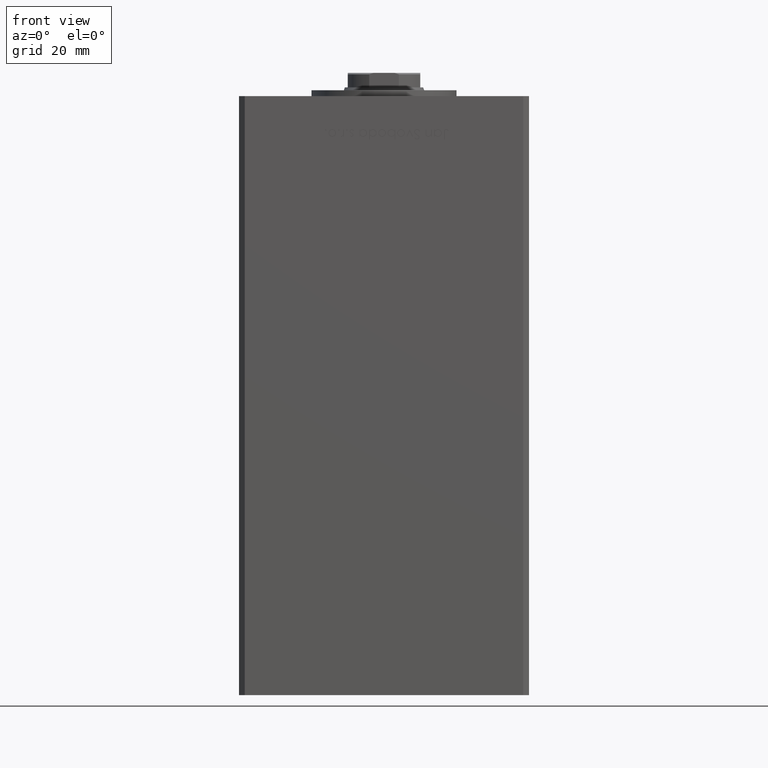
[diagram: clean part render]
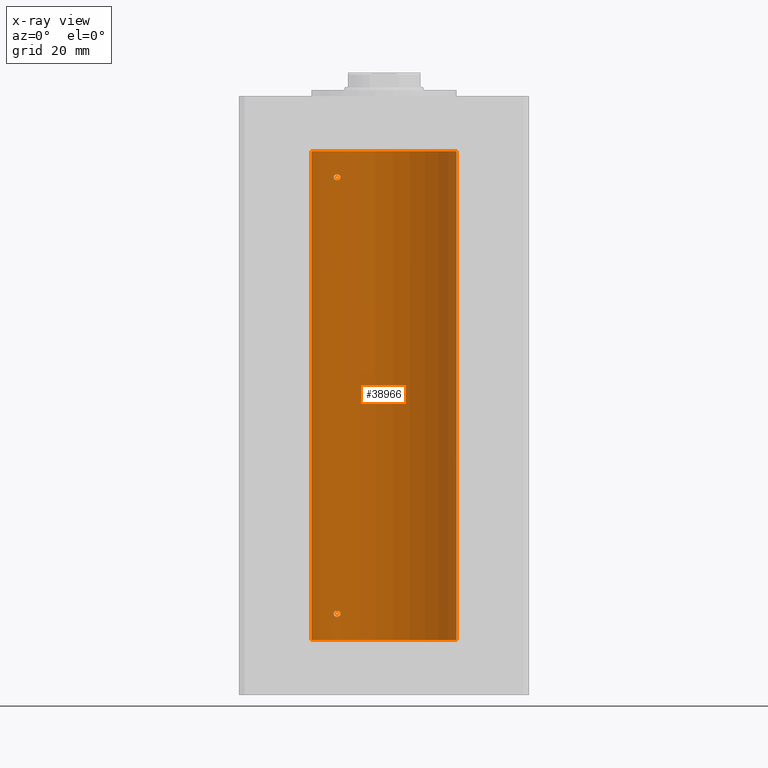
[diagram: x-ray — body ghosted, one internal face saturated and labeled with its STEP entity id]
A machine part, front view, then the same camera in x-ray: the body is ghosted and one INTERNAL B-rep face — a face not visible from any outside direction — is saturated and labeled: STEP entity #38966.
In plain terms, the highlighted cylindrical surface (partial cylindrical patch) has radius 25 mm, axis along (-0, -0, -1).
Its self-contained STEP definition (entity closure, byte-faithful):
#143 = CARTESIAN_POINT ( 'NONE',  ( -17.34935157289806185, 17.99999999999981526, 159.5000000000001137 ) ) ;
#196 = CARTESIAN_POINT ( 'NONE',  ( -17.15234217094406333, 18.18812579706696653, 158.8965730437749926 ) ) ;
#260 = CARTESIAN_POINT ( 'NONE',  ( -16.08745393861402917, 19.13692152169249994, 9.996501509986932987 ) ) ;
#323 = CARTESIAN_POINT ( 'NONE',  ( -15.00000000000019007, 20.00000000000002842, 8.915947458602436981 ) ) ;
#454 = CARTESIAN_POINT ( 'NONE',  ( -17.34935157289747210, 18.00000000000002132, 159.3289983604258850 ) ) ;
#517 = CARTESIAN_POINT ( 'NONE',  ( -16.46913072925703148, 18.81168496547890712, 10.00577755881140618 ) ) ;
#707 = CARTESIAN_POINT ( 'NONE',  ( -17.05249165747618534, 18.28208333366438509, 158.7922192200364577 ) ) ;
#3038 = CARTESIAN_POINT ( 'NONE',  ( -17.30163983552688833, 18.04615713653367948, 159.8360074727278288 ) ) ;
#3465 = DIRECTION ( 'NONE',  ( 1.000000000000000000, 0.000000000000000000, 0.000000000000000000 ) ) ;
#3806 = CARTESIAN_POINT ( 'NONE',  ( -17.14593038898727428, 18.19399314418736324, 160.0959448831964664 ) ) ;
#3984 = CARTESIAN_POINT ( 'NONE',  ( -15.58164749401199956, 19.55082150006405683, 8.156678072685190628 ) ) ;
#4118 = CARTESIAN_POINT ( 'NONE',  ( -15.01482636753733146, 19.98889854010115741, 159.3312026610077226 ) ) ;
#4244 = CARTESIAN_POINT ( 'NONE',  ( -15.06722189748647622, 19.94943357555938945, 8.675980324878882044 ) ) ;
#4390 = CARTESIAN_POINT ( 'NONE',  ( -16.08757264251632080, 19.13682698743034649, 158.5034427658482343 ) ) ;
#4509 = DIRECTION ( 'NONE',  ( -0.000000000000000000, -0.000000000000000000, -1.000000000000000000 ) ) ;
#6009 = VERTEX_POINT ( 'NONE', #23043 ) ;
#7220 = CARTESIAN_POINT ( 'NONE',  ( 25.00000000000000000, 3.061616997868383043E-15, 168.5000000000000000 ) ) ;
#7409 = CARTESIAN_POINT ( 'NONE',  ( -16.71492528194902860, 18.59135325782701287, 8.080141558342052832 ) ) ;
#7475 = B_SPLINE_CURVE_WITH_KNOTS ( 'NONE', 3,
 ( #25887, #50300, #14327, #41881, #21952, #37960, #46344, #7486, #24017, #43701, #51343, #47646, #27970, #19841, #43961, #3806, #40013, #3038, #39249, #143 ),
 .UNSPECIFIED., .F., .F.,
 ( 4, 2, 2, 2, 2, 2, 2, 2, 2, 4 ),
 ( 0.004032696862986557759, 0.004284699222246954667, 0.004536701581507351574, 0.005040706300028082940, 0.005544711018548810835, 0.006048715737069539598, 0.007056725174110996257, 0.007308727533371349797, 0.007560729892631701601, 0.008064734611152412150 ),
 .UNSPECIFIED. ) ;
#7486 = CARTESIAN_POINT ( 'NONE',  ( -15.58230678163759642, 19.55030131031898577, 160.3437394867029298 ) ) ;
#7717 = CIRCLE ( 'NONE', #30357, 25.00000000000000000 ) ;
#7928 = CARTESIAN_POINT ( 'NONE',  ( -17.34935157289806895, 17.99999999999981526, 9.000000000000094147 ) ) ;
#8110 = CARTESIAN_POINT ( 'NONE',  ( -15.58230678163760530, 19.55030131031898577, 9.843739486702938635 ) ) ;
#8376 = CARTESIAN_POINT ( 'NONE',  ( -14.99999999999999112, 20.00000000000001066, 9.000000000000000000 ) ) ;
#8640 = CARTESIAN_POINT ( 'NONE',  ( -16.72476285461318568, 18.58415905903082788, 9.944944760795701555 ) ) ;
#9221 = CARTESIAN_POINT ( 'NONE',  ( -14.99999999999999112, 20.00000000000000711, 159.5000000000000000 ) ) ;
#9291 = AXIS2_PLACEMENT_3D ( 'NONE', #35223, #39411, #3465 ) ;
#9312 = B_SPLINE_CURVE_WITH_KNOTS ( 'NONE', 3,
 ( #40330, #454, #24069, #196, #707, #32474, #48475, #16717, #12510, #4390, #23808, #20409, #28537, #44538, #27765, #43755, #16200, #4118, #24600, #40590 ),
 .UNSPECIFIED., .F., .F.,
 ( 4, 2, 2, 2, 2, 2, 2, 2, 2, 4 ),
 ( 2.254873622441466949E-16, 0.0005040871078735091300, 0.001008174215746792746, 0.001512261323620076470, 0.002016348431493359978, 0.002520435539366643485, 0.003024522647239927427, 0.003528609755113210501, 0.003780653309049884347, 0.004032696862986557759 ),
 .UNSPECIFIED. ) ;
#9526 = VERTEX_POINT ( 'NONE', #22582 ) ;
#10521 = CARTESIAN_POINT ( 'NONE',  ( -25.00000000000000000, 0.000000000000000000, 0.000000000000000000 ) ) ;
#10949 = CIRCLE ( 'NONE', #9291, 25.00000000000000000 ) ;
#11428 = DIRECTION ( 'NONE',  ( 1.000000000000000000, 0.000000000000000000, 0.000000000000000000 ) ) ;
#11703 = ORIENTED_EDGE ( 'NONE', *, *, #12493, .F. ) ;
#11794 = CARTESIAN_POINT ( 'NONE',  ( -17.34935157289747210, 18.00000000000001421, 9.170973690606336604 ) ) ;
#12115 = DIRECTION ( 'NONE',  ( -1.000000000000000000, 0.000000000000000000, 0.000000000000000000 ) ) ;
#12119 = CARTESIAN_POINT ( 'NONE',  ( -14.99999999999999112, 20.00000000000001066, 9.000000000000000000 ) ) ;
#12380 = CARTESIAN_POINT ( 'NONE',  ( -17.30269557861142360, 18.04515136187502122, 8.666042081755742643 ) ) ;
#12493 = EDGE_CURVE ( 'NONE', #40647, #22746, #10949, .T. ) ;
#12510 = CARTESIAN_POINT ( 'NONE',  ( -16.34293146994552259, 18.91921593628409681, 158.4973425906725879 ) ) ;
#12572 = CARTESIAN_POINT ( 'NONE',  ( -15.95796937689561013, 19.24499537862566712, 9.975773099652194276 ) ) ;
#12634 = FACE_BOUND ( 'NONE', #43392, .T. ) ;
#13365 = B_SPLINE_CURVE_WITH_KNOTS ( 'NONE', 3,
 ( #7928, #27374, #12380, #36269, #23944, #43369, #7409, #39936, #19763, #35756, #15554, #43623, #3984, #23428, #31567, #39690, #4244, #32346, #323, #12119 ),
 .UNSPECIFIED., .F., .F.,
 ( 4, 2, 2, 2, 2, 2, 2, 2, 2, 4 ),
 ( 1.994630283518400476E-16, 0.0005040871078734959028, 0.001008174215746792312, 0.001512261323620088830, 0.002016348431493385131, 0.002520435539366681216, 0.003024522647239978167, 0.003528609755113274252, 0.003780653309049923812, 0.004032696862986573372 ),
 .UNSPECIFIED. ) ;
#14327 = CARTESIAN_POINT ( 'NONE',  ( -15.01476641895662567, 19.98894406010707314, 159.6687945634013204 ) ) ;
#15554 = CARTESIAN_POINT ( 'NONE',  ( -15.95808436639360295, 19.24489366819300429, 8.024260878849535317 ) ) ;
#15817 = EDGE_CURVE ( 'NONE', #46684, #9526, #7717, .T. ) ;
#16136 = EDGE_LOOP ( 'NONE', ( #28426, #16438, #40817, #11703 ) ) ;
#16200 = CARTESIAN_POINT ( 'NONE',  ( -15.06722189748648866, 19.94943357555938590, 159.1759803248789069 ) ) ;
#16438 = ORIENTED_EDGE ( 'NONE', *, *, #15817, .T. ) ;
#16717 = CARTESIAN_POINT ( 'NONE',  ( -16.46844752485324648, 18.81003400474354947, 158.5115443190388760 ) ) ;
#16776 = CARTESIAN_POINT ( 'NONE',  ( -17.34935157289806895, 17.99999999999981526, 9.000000000000094147 ) ) ;
#19407 = VERTEX_POINT ( 'NONE', #41422 ) ;
#19609 = ORIENTED_EDGE ( 'NONE', *, *, #21990, .F. ) ;
#19763 = CARTESIAN_POINT ( 'NONE',  ( -16.34293146994553680, 18.91921593628409681, 7.997342590672627871 ) ) ;
#19841 = CARTESIAN_POINT ( 'NONE',  ( -16.99843849356149050, 18.33190197607055794, 160.2468335145757123 ) ) ;
#20409 = CARTESIAN_POINT ( 'NONE',  ( -15.70664578139651546, 19.45064696206092947, 158.6005795994921357 ) ) ;
#20474 = CARTESIAN_POINT ( 'NONE',  ( -15.06763582406798463, 19.94912143246364522, 9.325069938771754607 ) ) ;
#20861 = ORIENTED_EDGE ( 'NONE', *, *, #31340, .F. ) ;
#21952 = CARTESIAN_POINT ( 'NONE',  ( -15.10490800566735103, 19.92096305044241689, 159.8962931740442457 ) ) ;
#21990 = EDGE_CURVE ( 'NONE', #6009, #25423, #9312, .T. ) ;
#22582 = CARTESIAN_POINT ( 'NONE',  ( -25.00000000000000000, 0.000000000000000000, 168.5000000000000000 ) ) ;
#22746 = VERTEX_POINT ( 'NONE', #10521 ) ;
#23043 = CARTESIAN_POINT ( 'NONE',  ( -17.34935157289806185, 17.99999999999981526, 159.5000000000001137 ) ) ;
#23109 = EDGE_CURVE ( 'NONE', #46684, #40647, #34535, .T. ) ;
#23404 = CARTESIAN_POINT ( 'NONE',  ( 25.00000000000000000, 3.061616997868383043E-15, 168.5000000000000000 ) ) ;
#23428 = CARTESIAN_POINT ( 'NONE',  ( -15.34666241858317903, 19.73581294411416209, 8.312122460537615609 ) ) ;
#23808 = CARTESIAN_POINT ( 'NONE',  ( -15.95808436639360117, 19.24489366819300784, 158.5242608788495886 ) ) ;
#23944 = CARTESIAN_POINT ( 'NONE',  ( -17.05249165747619955, 18.28208333366437088, 8.292219220036422200 ) ) ;
#24017 = CARTESIAN_POINT ( 'NONE',  ( -15.70535969280552280, 19.45169171760802485, 160.3989607721124742 ) ) ;
#24069 = CARTESIAN_POINT ( 'NONE',  ( -17.30269557861141294, 18.04515136187502478, 159.1660420817557338 ) ) ;
#24129 = CARTESIAN_POINT ( 'NONE',  ( -17.19010376497221060, 18.15221652163110377, 9.535670123568005252 ) ) ;
#24196 = FACE_OUTER_BOUND ( 'NONE', #16136, .T. ) ;
#24395 = CARTESIAN_POINT ( 'NONE',  ( -17.14593038898729560, 18.19399314418734548, 9.595944883196500186 ) ) ;
#24399 = EDGE_CURVE ( 'NONE', #39970, #19407, #40442, .T. ) ;
#24600 = CARTESIAN_POINT ( 'NONE',  ( -15.00000000000018119, 20.00000000000001421, 159.4159474586024317 ) ) ;
#24706 = VECTOR ( 'NONE', #51180, 1000.000000000000000 ) ;
#25423 = VERTEX_POINT ( 'NONE', #9221 ) ;
#25887 = CARTESIAN_POINT ( 'NONE',  ( -14.99999999999999112, 20.00000000000000711, 159.5000000000000000 ) ) ;
#26814 = ORIENTED_EDGE ( 'NONE', *, *, #51614, .F. ) ;
#27374 = CARTESIAN_POINT ( 'NONE',  ( -17.34935157289747210, 18.00000000000001066, 8.828998360425808656 ) ) ;
#27765 = CARTESIAN_POINT ( 'NONE',  ( -15.23538646979298505, 19.82157806413532697, 158.9119998952828041 ) ) ;
#27826 = CARTESIAN_POINT ( 'NONE',  ( -15.01476641895661679, 19.98894406010708380, 9.168794563401341691 ) ) ;
#27968 = DIRECTION ( 'NONE',  ( -0.000000000000000000, 0.000000000000000000, 1.000000000000000000 ) ) ;
#27970 = CARTESIAN_POINT ( 'NONE',  ( -16.72476285461317502, 18.58415905903083498, 160.4449447607956643 ) ) ;
#28426 = ORIENTED_EDGE ( 'NONE', *, *, #23109, .F. ) ;
#28537 = CARTESIAN_POINT ( 'NONE',  ( -15.58164749401199956, 19.55082150006405328, 158.6566780726851960 ) ) ;
#29787 = ORIENTED_EDGE ( 'NONE', *, *, #24399, .F. ) ;
#30357 = AXIS2_PLACEMENT_3D ( 'NONE', #31392, #27968, #11428 ) ;
#30510 = CARTESIAN_POINT ( 'NONE',  ( -14.99999999999999112, 20.00000000000001066, 9.000000000000000000 ) ) ;
#31340 = EDGE_CURVE ( 'NONE', #19407, #39970, #13365, .T. ) ;
#31387 = DIRECTION ( 'NONE',  ( -0.000000000000000000, -0.000000000000000000, -1.000000000000000000 ) ) ;
#31392 = CARTESIAN_POINT ( 'NONE',  ( 0.000000000000000000, 0.000000000000000000, 168.5000000000000000 ) ) ;
#31567 = CARTESIAN_POINT ( 'NONE',  ( -15.23538646979297440, 19.82157806413534118, 8.411999895282772144 ) ) ;
#31755 = CARTESIAN_POINT ( 'NONE',  ( -15.23594348686699895, 19.82115246225716376, 9.588721932685826843 ) ) ;
#32346 = CARTESIAN_POINT ( 'NONE',  ( -15.01482636753732791, 19.98889854010116096, 8.831202661007704791 ) ) ;
#32474 = CARTESIAN_POINT ( 'NONE',  ( -16.83415218046510731, 18.48332662461726983, 158.6343172662811867 ) ) ;
#34535 = LINE ( 'NONE', #7220, #42034 ) ;
#35223 = CARTESIAN_POINT ( 'NONE',  ( 0.000000000000000000, 0.000000000000000000, 0.000000000000000000 ) ) ;
#35686 = CARTESIAN_POINT ( 'NONE',  ( -15.70535969280553346, 19.45169171760802840, 9.898960772112497253 ) ) ;
#35752 = CARTESIAN_POINT ( 'NONE',  ( 0.000000000000000000, 0.000000000000000000, 168.5000000000000000 ) ) ;
#35756 = CARTESIAN_POINT ( 'NONE',  ( -16.08757264251632790, 19.13682698743033939, 8.003442765848200580 ) ) ;
#36269 = CARTESIAN_POINT ( 'NONE',  ( -17.15234217094407043, 18.18812579706695232, 8.396573043774958833 ) ) ;
#36468 = CARTESIAN_POINT ( 'NONE',  ( -15.00000000000018829, 20.00000000000001776, 9.084038803624167713 ) ) ;
#37325 = EDGE_CURVE ( 'NONE', #9526, #22746, #43031, .T. ) ;
#37960 = CARTESIAN_POINT ( 'NONE',  ( -15.23594348686699185, 19.82115246225716021, 160.0887219326858713 ) ) ;
#38966 = ADVANCED_FACE ( 'NONE', ( #24196, #40454, #12634 ), #48343, .F. ) ;
#39249 = CARTESIAN_POINT ( 'NONE',  ( -17.34935157289746854, 18.00000000000001421, 159.6709736906063029 ) ) ;
#39411 = DIRECTION ( 'NONE',  ( -0.000000000000000000, 0.000000000000000000, 1.000000000000000000 ) ) ;
#39690 = CARTESIAN_POINT ( 'NONE',  ( -15.10490010356604174, 19.92096840819820258, 8.603766671322523152 ) ) ;
#39936 = CARTESIAN_POINT ( 'NONE',  ( -16.46844752485326069, 18.81003400474354237, 8.011544319038929274 ) ) ;
#39970 = VERTEX_POINT ( 'NONE', #30510 ) ;
#40013 = CARTESIAN_POINT ( 'NONE',  ( -17.19010376497220705, 18.15221652163111088, 160.0356701235680248 ) ) ;
#40330 = CARTESIAN_POINT ( 'NONE',  ( -17.34935157289806185, 17.99999999999981526, 159.5000000000001137 ) ) ;
#40393 = CARTESIAN_POINT ( 'NONE',  ( -17.30163983552689899, 18.04615713653367592, 9.336007472727789747 ) ) ;
#40442 = B_SPLINE_CURVE_WITH_KNOTS ( 'NONE', 3,
 ( #8376, #36468, #27826, #20474, #48019, #31755, #44602, #8110, #35686, #12572, #260, #517, #8640, #44334, #51701, #24395, #24129, #40393, #11794, #16776 ),
 .UNSPECIFIED., .F., .F.,
 ( 4, 2, 2, 2, 2, 2, 2, 2, 2, 4 ),
 ( 0.004032696862986573372, 0.004284699222246939054, 0.004536701581507305604, 0.005040706300028038704, 0.005544711018548771804, 0.006048715737069505771, 0.007056725174110978910, 0.007308727533371345460, 0.007560729892631712010, 0.008064734611152450314 ),
 .UNSPECIFIED. ) ;
#40454 = FACE_BOUND ( 'NONE', #40770, .T. ) ;
#40590 = CARTESIAN_POINT ( 'NONE',  ( -14.99999999999999112, 20.00000000000000711, 159.5000000000000000 ) ) ;
#40647 = VERTEX_POINT ( 'NONE', #47171 ) ;
#40770 = EDGE_LOOP ( 'NONE', ( #20861, #29787 ) ) ;
#40817 = ORIENTED_EDGE ( 'NONE', *, *, #37325, .T. ) ;
#41422 = CARTESIAN_POINT ( 'NONE',  ( -17.34935157289806895, 17.99999999999981526, 9.000000000000094147 ) ) ;
#41881 = CARTESIAN_POINT ( 'NONE',  ( -15.06763582406798818, 19.94912143246363811, 159.8250699387718043 ) ) ;
#42034 = VECTOR ( 'NONE', #31387, 1000.000000000000000 ) ;
#43031 = LINE ( 'NONE', #47748, #24706 ) ;
#43369 = CARTESIAN_POINT ( 'NONE',  ( -16.83415218046512152, 18.48332662461726272, 8.134317266281161807 ) ) ;
#43392 = EDGE_LOOP ( 'NONE', ( #19609, #26814 ) ) ;
#43623 = CARTESIAN_POINT ( 'NONE',  ( -15.70664578139651191, 19.45064696206092947, 8.100579599492109040 ) ) ;
#43701 = CARTESIAN_POINT ( 'NONE',  ( -15.95796937689560480, 19.24499537862567422, 160.4757730996522014 ) ) ;
#43755 = CARTESIAN_POINT ( 'NONE',  ( -15.10490010356605595, 19.92096840819819903, 159.1037666713225462 ) ) ;
#43961 = CARTESIAN_POINT ( 'NONE',  ( -17.05007833789892047, 18.28384926940287869, 160.2013739990121621 ) ) ;
#44334 = CARTESIAN_POINT ( 'NONE',  ( -16.99843849356148695, 18.33190197607054372, 9.746833514575657276 ) ) ;
#44538 = CARTESIAN_POINT ( 'NONE',  ( -15.34666241858318259, 19.73581294411415854, 158.8121224605376085 ) ) ;
#44602 = CARTESIAN_POINT ( 'NONE',  ( -15.34624284195506583, 19.73614442075939479, 9.687618531851304837 ) ) ;
#46344 = CARTESIAN_POINT ( 'NONE',  ( -15.34624284195505162, 19.73614442075940190, 160.1876185318513137 ) ) ;
#46684 = VERTEX_POINT ( 'NONE', #23404 ) ;
#47171 = CARTESIAN_POINT ( 'NONE',  ( 25.00000000000000000, 3.061616997868383043E-15, 0.000000000000000000 ) ) ;
#47369 = AXIS2_PLACEMENT_3D ( 'NONE', #35752, #4509, #12115 ) ;
#47646 = CARTESIAN_POINT ( 'NONE',  ( -16.46913072925702792, 18.81168496547891777, 160.5057775588113884 ) ) ;
#47748 = CARTESIAN_POINT ( 'NONE',  ( -25.00000000000000000, 0.000000000000000000, 168.5000000000000000 ) ) ;
#48019 = CARTESIAN_POINT ( 'NONE',  ( -15.10490800566735814, 19.92096305044240978, 9.396293174044259899 ) ) ;
#48343 = CYLINDRICAL_SURFACE ( 'NONE', #47369, 25.00000000000000000 ) ;
#48475 = CARTESIAN_POINT ( 'NONE',  ( -16.71492528194901794, 18.59135325782701642, 158.5801415583420066 ) ) ;
#50300 = CARTESIAN_POINT ( 'NONE',  ( -15.00000000000018474, 20.00000000000002487, 159.5840388036241677 ) ) ;
#51180 = DIRECTION ( 'NONE',  ( -0.000000000000000000, -0.000000000000000000, -1.000000000000000000 ) ) ;
#51343 = CARTESIAN_POINT ( 'NONE',  ( -16.08745393861402917, 19.13692152169251059, 160.4965015099869277 ) ) ;
#51614 = EDGE_CURVE ( 'NONE', #25423, #6009, #7475, .T. ) ;
#51701 = CARTESIAN_POINT ( 'NONE',  ( -17.05007833789893112, 18.28384926940286093, 9.701373999012139038 ) ) ;